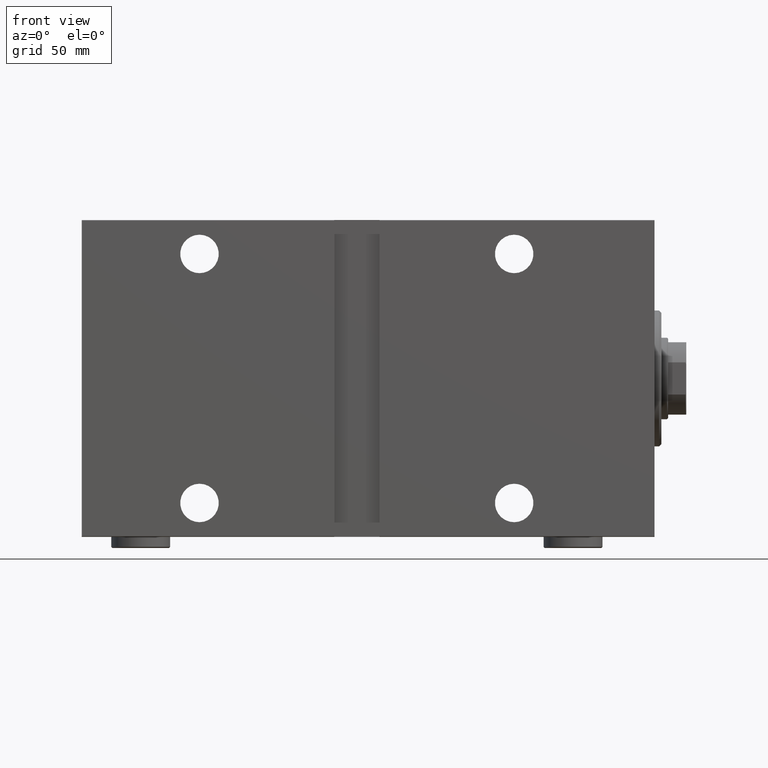
[diagram: clean part render]
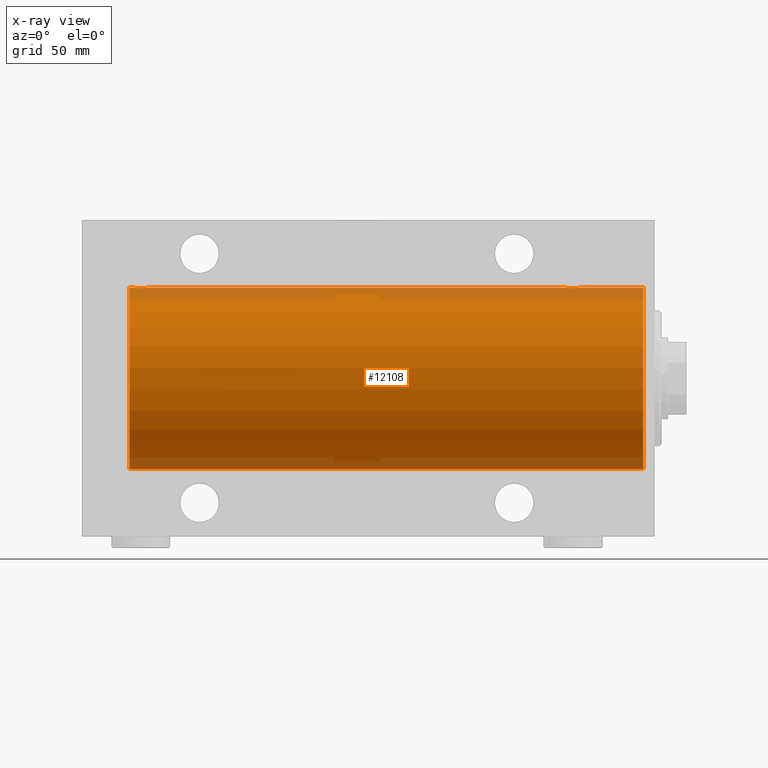
[diagram: x-ray — body ghosted, one internal face saturated and labeled with its STEP entity id]
A machine part, front view, then the same camera in x-ray: the body is ghosted and one INTERNAL B-rep face — a face not visible from any outside direction — is saturated and labeled: STEP entity #12108.
In plain terms, the highlighted cylindrical surface (partial cylindrical patch) has radius 40 mm, axis along (1, 0, -0).
Its self-contained STEP definition (entity closure, byte-faithful):
#6 = CARTESIAN_POINT ( 'NONE',  ( 224.1530856663910640, 0.9663207501652035791, 39.98873943115997065 ) ) ;
#174 = CIRCLE ( 'NONE', #30278, 40.00000000000000000 ) ;
#1059 = CARTESIAN_POINT ( 'NONE',  ( 38.90427371185430161, 0.7768046863726105755, 39.99291636985138609 ) ) ;
#1278 = CARTESIAN_POINT ( 'NONE',  ( 33.61483062030600166, 1.830069308885369894, 39.95844440547435994 ) ) ;
#3377 = CARTESIAN_POINT ( 'NONE',  ( 229.9805336956898429, 0.3932559001416426891, 39.99852666141217838 ) ) ;
#3455 = EDGE_LOOP ( 'NONE', ( #34455, #15562, #30680, #41194, #35033, #39732, #14119, #42228 ) ) ;
#3551 = EDGE_CURVE ( 'NONE', #33407, #4956, #174, .T. ) ;
#3599 = CARTESIAN_POINT ( 'NONE',  ( 226.0346170223975264, 2.847223932150697578, 39.89860891179019120 ) ) ;
#4209 = CARTESIAN_POINT ( 'NONE',  ( 38.25929512657906173, 1.983397227149399589, 39.95103655448512825 ) ) ;
#4292 = VERTEX_POINT ( 'NONE', #35068 ) ;
#4423 = CARTESIAN_POINT ( 'NONE',  ( 37.32902305536723020, 2.696641662727002675, 39.90906847305313221 ) ) ;
#4642 = CARTESIAN_POINT ( 'NONE',  ( 36.39154242090099700, 2.980886287300807957, 39.88879301994635540 ) ) ;
#4956 = VERTEX_POINT ( 'NONE', #38301 ) ;
#5972 = VECTOR ( 'NONE', #9223, 1000.000000000000000 ) ;
#6298 = CARTESIAN_POINT ( 'NONE',  ( 224.3036467693047769, 1.329803094607254321, 39.97830262548650637 ) ) ;
#6745 = CARTESIAN_POINT ( 'NONE',  ( 224.0196258769034046, 0.3947312521144673014, 39.99851454786935534 ) ) ;
#6815 = CARTESIAN_POINT ( 'NONE',  ( 230.0000000000000284, 1.446721683758770418E-15, 40.00000000000000000 ) ) ;
#6970 = CARTESIAN_POINT ( 'NONE',  ( 228.8315373355074769, 2.384195078505186416, 39.92903310064217948 ) ) ;
#7214 = EDGE_CURVE ( 'NONE', #30604, #11075, #16136, .T. ) ;
#7302 = CARTESIAN_POINT ( 'NONE',  ( 5.000000000000004441, 0.000000000000000000, 0.000000000000000000 ) ) ;
#7347 = CARTESIAN_POINT ( 'NONE',  ( 232.0000000000000000, 0.000000000000000000, 40.00000000000000000 ) ) ;
#7711 = CIRCLE ( 'NONE', #10588, 40.00000000000000000 ) ;
#8124 = CARTESIAN_POINT ( 'NONE',  ( 232.0000000000000000, 0.000000000000000000, 0.000000000000000000 ) ) ;
#8235 = CARTESIAN_POINT ( 'NONE',  ( 33.39757861902342029, 1.505187563391997774, 39.97200074276641857 ) ) ;
#9223 = DIRECTION ( 'NONE',  ( -1.000000000000000000, -0.000000000000000000, -0.000000000000000000 ) ) ;
#9250 = DIRECTION ( 'NONE',  ( -1.000000000000000000, -0.000000000000000000, -0.000000000000000000 ) ) ;
#9309 = VERTEX_POINT ( 'NONE', #20225 ) ;
#9662 = CARTESIAN_POINT ( 'NONE',  ( 226.2216664113803120, 2.903909245874791267, 39.89447063612582411 ) ) ;
#9887 = CARTESIAN_POINT ( 'NONE',  ( 228.9825521199030050, 2.260036752248979930, 39.93634209860680073 ) ) ;
#10109 = CARTESIAN_POINT ( 'NONE',  ( 226.8053303862724022, 3.000070108558740234, 39.88733607736547526 ) ) ;
#10332 = CARTESIAN_POINT ( 'NONE',  ( 229.3859910274744038, 1.829066045078044267, 39.95849278436325136 ) ) ;
#10557 = CARTESIAN_POINT ( 'NONE',  ( 228.5035643008338866, 2.603499486649415218, 39.91533365697402758 ) ) ;
#10588 = AXIS2_PLACEMENT_3D ( 'NONE', #7302, #31516, #17408 ) ;
#10726 = CARTESIAN_POINT ( 'NONE',  ( 33.09635504612251111, 0.7792872749133264998, 39.99287049138470707 ) ) ;
#11044 = VECTOR ( 'NONE', #9250, 1000.000000000000000 ) ;
#11075 = VERTEX_POINT ( 'NONE', #42711 ) ;
#11161 = CARTESIAN_POINT ( 'NONE',  ( 35.80533038627242348, 3.000070108558746451, 39.88733607736547526 ) ) ;
#11598 = CARTESIAN_POINT ( 'NONE',  ( 37.83153733550744136, 2.384195078505188636, 39.92903310064217948 ) ) ;
#12108 = ADVANCED_FACE ( 'NONE', ( #18227 ), #14855, .F. ) ;
#12173 = B_SPLINE_CURVE_WITH_KNOTS ( 'NONE', 3,
 ( #38065, #34937, #21709, #1059, #28220, #38728, #38945, #34716, #4209, #17904, #11598, #25296, #4423, #18122, #14318, #4642, #31789, #11161, #14752, #18334, #27783, #35378, #32007, #41444, #28440, #41875, #1278, #8235, #31352, #27999, #10726, #14976, #21924, #24414 ),
 .UNSPECIFIED., .F., .F.,
 ( 4, 2, 2, 2, 2, 2, 2, 2, 2, 2, 2, 2, 2, 2, 2, 2, 4 ),
 ( 2.340832208329753449E-18, 0.0005864162728940714667, 0.001172832545788140548, 0.001759248818682209630, 0.002345665091576278494, 0.002932081364470347576, 0.003518497637364416657, 0.004104913910258485739, 0.004691330183152555254, 0.005277746456046624769, 0.005864162728940693417, 0.006450579001834762065, 0.007036995274728831580, 0.007623411547622901095, 0.008209827820516968008, 0.008796244093411037523, 0.009382660366305107039 ),
 .UNSPECIFIED. ) ;
#12341 = EDGE_CURVE ( 'NONE', #4292, #39297, #7711, .T. ) ;
#13064 = CARTESIAN_POINT ( 'NONE',  ( 232.0000000000000000, 4.898587196589412237E-15, -40.00000000000000000 ) ) ;
#13481 = CARTESIAN_POINT ( 'NONE',  ( 224.6148306203060372, 1.830069308885369450, 39.95844440547435994 ) ) ;
#13703 = CARTESIAN_POINT ( 'NONE',  ( 229.6959120418105158, 1.330687358699873979, 39.97827280031935970 ) ) ;
#14119 = ORIENTED_EDGE ( 'NONE', *, *, #37726, .T. ) ;
#14318 = CARTESIAN_POINT ( 'NONE',  ( 36.77886631885524338, 2.903851887155389555, 39.89447500423337800 ) ) ;
#14752 = CARTESIAN_POINT ( 'NONE',  ( 35.60649793607049673, 2.980544951704983347, 39.88881833341080352 ) ) ;
#14855 = CYLINDRICAL_SURFACE ( 'NONE', #39914, 40.00000000000000000 ) ;
#14976 = CARTESIAN_POINT ( 'NONE',  ( 33.01962587690334061, 0.3947312521144665798, 39.99851454786935534 ) ) ;
#15562 = ORIENTED_EDGE ( 'NONE', *, *, #3551, .F. ) ;
#15797 = CARTESIAN_POINT ( 'NONE',  ( 232.0000000000000000, 0.000000000000000000, 40.00000000000000000 ) ) ;
#16136 = B_SPLINE_CURVE_WITH_KNOTS ( 'NONE', 3,
 ( #43981, #30306, #3377, #24026, #26722, #13703, #41270, #10332, #37681, #9887, #6970, #10557, #40374, #19990, #34324, #23591, #30526, #10109, #20656, #9662, #3599, #33886, #30748, #44197, #33436, #23803, #13481, #17070, #6298, #6, #17291, #6745, #27170, #30966 ),
 .UNSPECIFIED., .F., .F.,
 ( 4, 2, 2, 2, 2, 2, 2, 2, 2, 2, 2, 2, 2, 2, 2, 2, 4 ),
 ( 1.405868427696373966E-18, 0.0005864162728940697320, 0.001172832545788137946, 0.001759248818682206377, 0.002345665091576274591, 0.002932081364470342805, 0.003518497637364411453, 0.004104913910258479667, 0.004691330183152548315, 0.005277746456046616963, 0.005864162728940684743, 0.006450579001834753391, 0.007036995274728822039, 0.007623411547622889819, 0.008209827820516957600, 0.008796244093411027115, 0.009382660366305094896 ),
 .UNSPECIFIED. ) ;
#17070 = CARTESIAN_POINT ( 'NONE',  ( 224.3975786190234487, 1.505187563391999328, 39.97200074276641857 ) ) ;
#17291 = CARTESIAN_POINT ( 'NONE',  ( 224.0963550461225395, 0.7792872749133264998, 39.99287049138470707 ) ) ;
#17408 = DIRECTION ( 'NONE',  ( 0.000000000000000000, 0.000000000000000000, 1.000000000000000000 ) ) ;
#17451 = LINE ( 'NONE', #7347, #40660 ) ;
#17904 = CARTESIAN_POINT ( 'NONE',  ( 37.98255211990295521, 2.260036752248976377, 39.93634209860680073 ) ) ;
#18122 = CARTESIAN_POINT ( 'NONE',  ( 36.96800844763285454, 2.846249845702961689, 39.89867772821342129 ) ) ;
#18227 = FACE_OUTER_BOUND ( 'NONE', #3455, .T. ) ;
#18334 = CARTESIAN_POINT ( 'NONE',  ( 35.22166641138024090, 2.903909245874795708, 39.89447063612582411 ) ) ;
#19469 = CARTESIAN_POINT ( 'NONE',  ( 232.0000000000000000, 0.000000000000000000, 0.000000000000000000 ) ) ;
#19756 = EDGE_CURVE ( 'NONE', #11075, #35474, #43307, .T. ) ;
#19990 = CARTESIAN_POINT ( 'NONE',  ( 227.9680084476329114, 2.846249845702957693, 39.89867772821342129 ) ) ;
#20225 = CARTESIAN_POINT ( 'NONE',  ( 32.99999999999999289, -1.483452932268112700E-23, 40.00000000000000000 ) ) ;
#20656 = CARTESIAN_POINT ( 'NONE',  ( 226.6064979360705820, 2.980544951704977574, 39.88881833341080352 ) ) ;
#21709 = CARTESIAN_POINT ( 'NONE',  ( 38.98053369568978610, 0.3932559001416438549, 39.99852666141217838 ) ) ;
#21813 = DIRECTION ( 'NONE',  ( -1.000000000000000000, -0.000000000000000000, -0.000000000000000000 ) ) ;
#21892 = EDGE_CURVE ( 'NONE', #4956, #39297, #39734, .T. ) ;
#21924 = CARTESIAN_POINT ( 'NONE',  ( 33.00000000000001421, 0.1958295874890013388, 39.99999999999998579 ) ) ;
#22927 = CARTESIAN_POINT ( 'NONE',  ( 5.000000000000004441, 4.898587196589412237E-15, -40.00000000000000000 ) ) ;
#23591 = CARTESIAN_POINT ( 'NONE',  ( 227.3915424209010610, 2.980886287300803072, 39.88879301994635540 ) ) ;
#23803 = CARTESIAN_POINT ( 'NONE',  ( 224.7390160613684031, 1.981711254113857290, 39.95112616827061913 ) ) ;
#24026 = CARTESIAN_POINT ( 'NONE',  ( 229.9042737118543016, 0.7768046863726091322, 39.99291636985138609 ) ) ;
#24414 = CARTESIAN_POINT ( 'NONE',  ( 32.99999999999999289, -1.483452932268112700E-23, 40.00000000000000000 ) ) ;
#24619 = DIRECTION ( 'NONE',  ( -1.000000000000000000, -0.000000000000000000, -0.000000000000000000 ) ) ;
#25296 = CARTESIAN_POINT ( 'NONE',  ( 37.50356430083393633, 2.603499486649419659, 39.91533365697402758 ) ) ;
#25766 = DIRECTION ( 'NONE',  ( 0.000000000000000000, 0.000000000000000000, 1.000000000000000000 ) ) ;
#26722 = CARTESIAN_POINT ( 'NONE',  ( 229.8465492456673758, 0.9673820216299510166, 39.98871336974454493 ) ) ;
#27170 = CARTESIAN_POINT ( 'NONE',  ( 224.0000000000000568, 0.1958295874890039479, 39.99999999999998579 ) ) ;
#27783 = CARTESIAN_POINT ( 'NONE',  ( 35.03461702239748377, 2.847223932150706016, 39.89860891179019831 ) ) ;
#27999 = CARTESIAN_POINT ( 'NONE',  ( 33.15308566639104981, 0.9663207501652035791, 39.98873943115997065 ) ) ;
#28220 = CARTESIAN_POINT ( 'NONE',  ( 38.84654924566736867, 0.9673820216299555685, 39.98871336974454493 ) ) ;
#28440 = CARTESIAN_POINT ( 'NONE',  ( 34.01917014396114780, 2.261756164323880824, 39.93625070860936432 ) ) ;
#29441 = EDGE_CURVE ( 'NONE', #35474, #9309, #12173, .T. ) ;
#30278 = AXIS2_PLACEMENT_3D ( 'NONE', #19469, #39637, #25766 ) ;
#30306 = CARTESIAN_POINT ( 'NONE',  ( 230.0000000000000284, 0.1982918730505192351, 39.99999999999999289 ) ) ;
#30515 = CARTESIAN_POINT ( 'NONE',  ( 232.0000000000000000, 0.000000000000000000, 40.00000000000000000 ) ) ;
#30526 = CARTESIAN_POINT ( 'NONE',  ( 227.1968244977694553, 2.999929504480784104, 39.88734665245503663 ) ) ;
#30604 = VERTEX_POINT ( 'NONE', #6815 ) ;
#30680 = ORIENTED_EDGE ( 'NONE', *, *, #34733, .T. ) ;
#30748 = CARTESIAN_POINT ( 'NONE',  ( 225.4957064313994977, 2.602941461497640496, 39.91536715259250911 ) ) ;
#30966 = CARTESIAN_POINT ( 'NONE',  ( 224.0000000000000284, -1.482387970046064334E-23, 40.00000000000000000 ) ) ;
#31352 = CARTESIAN_POINT ( 'NONE',  ( 33.30364676930471290, 1.329803094607255431, 39.97830262548650637 ) ) ;
#31516 = DIRECTION ( 'NONE',  ( -1.000000000000000000, 0.000000000000000000, 0.000000000000000000 ) ) ;
#31789 = CARTESIAN_POINT ( 'NONE',  ( 36.19682449776940558, 2.999929504480790321, 39.88734665245503663 ) ) ;
#32007 = CARTESIAN_POINT ( 'NONE',  ( 34.49570643139941950, 2.602941461497644049, 39.91536715259250911 ) ) ;
#33407 = VERTEX_POINT ( 'NONE', #30515 ) ;
#33436 = CARTESIAN_POINT ( 'NONE',  ( 225.0191701439611336, 2.261756164323870166, 39.93625070860936432 ) ) ;
#33886 = CARTESIAN_POINT ( 'NONE',  ( 225.6713074388766245, 2.696891635062789838, 39.90905226542625428 ) ) ;
#34324 = CARTESIAN_POINT ( 'NONE',  ( 227.7788663188552505, 2.903851887155386891, 39.89447500423337800 ) ) ;
#34455 = ORIENTED_EDGE ( 'NONE', *, *, #21892, .F. ) ;
#34716 = CARTESIAN_POINT ( 'NONE',  ( 38.38599102747435410, 1.829066045078045155, 39.95849278436325136 ) ) ;
#34733 = EDGE_CURVE ( 'NONE', #33407, #30604, #43589, .T. ) ;
#34937 = CARTESIAN_POINT ( 'NONE',  ( 39.00000000000000000, 0.1982918730505196514, 39.99999999999999289 ) ) ;
#35033 = ORIENTED_EDGE ( 'NONE', *, *, #19756, .T. ) ;
#35068 = CARTESIAN_POINT ( 'NONE',  ( 5.000000000000004441, 0.000000000000000000, 40.00000000000000000 ) ) ;
#35378 = CARTESIAN_POINT ( 'NONE',  ( 34.67130743887656763, 2.696891635062799608, 39.90905226542624717 ) ) ;
#35474 = VERTEX_POINT ( 'NONE', #37304 ) ;
#35481 = DIRECTION ( 'NONE',  ( 0.000000000000000000, 0.000000000000000000, 1.000000000000000000 ) ) ;
#37304 = CARTESIAN_POINT ( 'NONE',  ( 39.00000000000000000, 1.229131351128202115E-15, 40.00000000000000000 ) ) ;
#37681 = CARTESIAN_POINT ( 'NONE',  ( 229.2592951265791328, 1.983397227149406028, 39.95103655448512825 ) ) ;
#37726 = EDGE_CURVE ( 'NONE', #9309, #4292, #17451, .T. ) ;
#38065 = CARTESIAN_POINT ( 'NONE',  ( 39.00000000000000000, 1.229131351128202115E-15, 40.00000000000000000 ) ) ;
#38301 = CARTESIAN_POINT ( 'NONE',  ( 232.0000000000000000, 4.898587196589412237E-15, -40.00000000000000000 ) ) ;
#38728 = CARTESIAN_POINT ( 'NONE',  ( 38.69591204181047317, 1.330687358699878642, 39.97827280031935970 ) ) ;
#38945 = CARTESIAN_POINT ( 'NONE',  ( 38.60374115178256460, 1.502986292339226981, 39.97208601512195258 ) ) ;
#39297 = VERTEX_POINT ( 'NONE', #22927 ) ;
#39637 = DIRECTION ( 'NONE',  ( -1.000000000000000000, 0.000000000000000000, 0.000000000000000000 ) ) ;
#39732 = ORIENTED_EDGE ( 'NONE', *, *, #29441, .T. ) ;
#39734 = LINE ( 'NONE', #13064, #11044 ) ;
#39914 = AXIS2_PLACEMENT_3D ( 'NONE', #8124, #21813, #35481 ) ;
#39924 = CARTESIAN_POINT ( 'NONE',  ( 232.0000000000000000, 0.000000000000000000, 40.00000000000000000 ) ) ;
#40374 = CARTESIAN_POINT ( 'NONE',  ( 228.3290230553672302, 2.696641662727001787, 39.90906847305313221 ) ) ;
#40430 = DIRECTION ( 'NONE',  ( -1.000000000000000000, -0.000000000000000000, -0.000000000000000000 ) ) ;
#40660 = VECTOR ( 'NONE', #24619, 1000.000000000000000 ) ;
#41194 = ORIENTED_EDGE ( 'NONE', *, *, #7214, .T. ) ;
#41270 = CARTESIAN_POINT ( 'NONE',  ( 229.6037411517826001, 1.502986292339226981, 39.97208601512195258 ) ) ;
#41444 = CARTESIAN_POINT ( 'NONE',  ( 34.17068180410537792, 2.385749008316979225, 39.92893738690724348 ) ) ;
#41875 = CARTESIAN_POINT ( 'NONE',  ( 33.73901606136833209, 1.981711254113868170, 39.95112616827061913 ) ) ;
#42228 = ORIENTED_EDGE ( 'NONE', *, *, #12341, .T. ) ;
#42711 = CARTESIAN_POINT ( 'NONE',  ( 224.0000000000000284, -1.482387970046064334E-23, 40.00000000000000000 ) ) ;
#42748 = VECTOR ( 'NONE', #40430, 1000.000000000000000 ) ;
#43307 = LINE ( 'NONE', #39924, #5972 ) ;
#43589 = LINE ( 'NONE', #15797, #42748 ) ;
#43981 = CARTESIAN_POINT ( 'NONE',  ( 230.0000000000000284, 1.446721683758770418E-15, 40.00000000000000000 ) ) ;
#44197 = CARTESIAN_POINT ( 'NONE',  ( 225.1706818041054703, 2.385749008316978337, 39.92893738690724348 ) ) ;